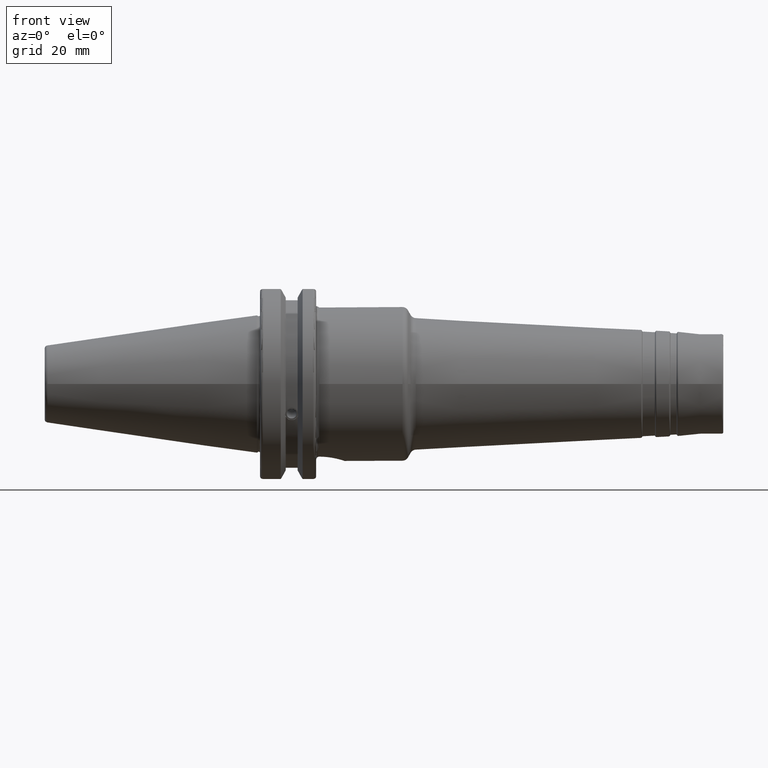
[diagram: clean part render]
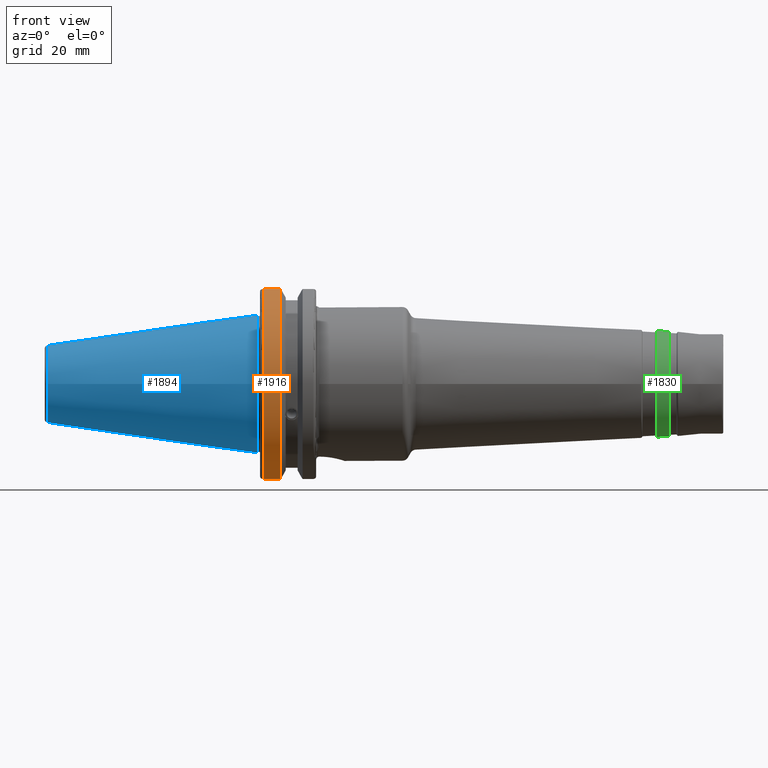
[diagram: same view with three faces highlighted in distinct colors, each labeled with its STEP entity id]
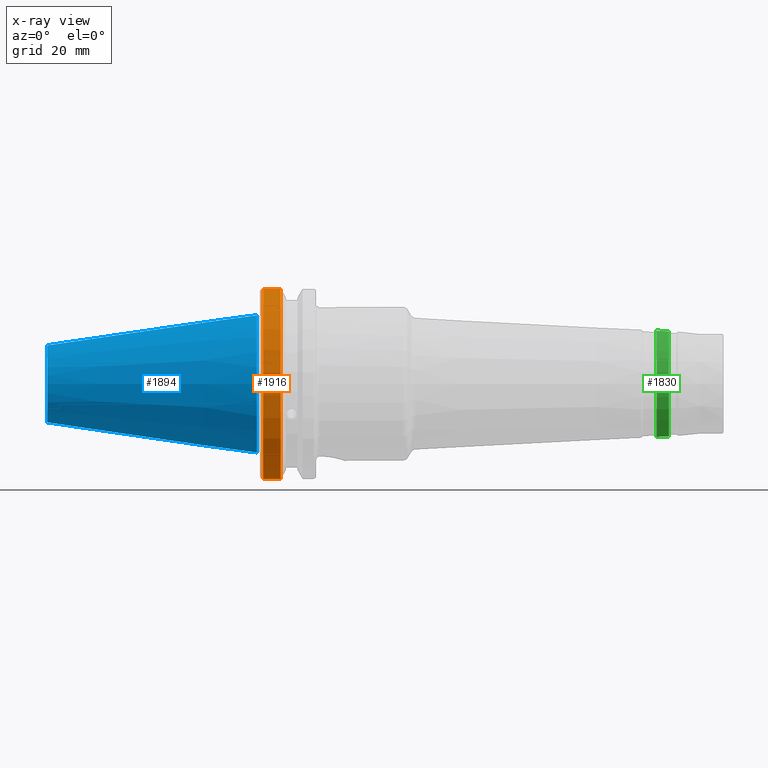
[diagram: x-ray of the same camera — body ghosted, the three highlighted faces saturated]
A machine part, front view with three faces highlighted in distinct colors.
The next image is the same camera in x-ray (body ghosted, the three faces saturated) — at least one of them is partly hidden behind the body in this view.
Their STEP definitions:

[orange] entity #1916 — the highlighted cylindrical surface (partial cylindrical patch) has radius 31.75 mm, axis along (1, 0, 0).
#78=CYLINDRICAL_SURFACE('',#2185,31.75);
#242=LINE('',#3634,#335);
#247=LINE('',#3691,#340);
#335=VECTOR('',#2656,10.);
#340=VECTOR('',#2691,10.);
#475=FACE_OUTER_BOUND('',#595,.T.);
#595=EDGE_LOOP('',(#1769,#1770,#1771,#1772));
#701=CIRCLE('',#2131,31.75);
#725=CIRCLE('',#2186,31.75);
#894=VERTEX_POINT('',#3601);
#895=VERTEX_POINT('',#3610);
#900=VERTEX_POINT('',#3633);
#909=VERTEX_POINT('',#3687);
#1154=EDGE_CURVE('',#894,#895,#701,.T.);
#1163=EDGE_CURVE('',#895,#900,#242,.T.);
#1180=EDGE_CURVE('',#909,#894,#247,.T.);
#1209=EDGE_CURVE('',#900,#909,#725,.T.);
#1769=ORIENTED_EDGE('',*,*,#1154,.F.);
#1770=ORIENTED_EDGE('',*,*,#1180,.F.);
#1771=ORIENTED_EDGE('',*,*,#1209,.F.);
#1772=ORIENTED_EDGE('',*,*,#1163,.F.);
#1916=ADVANCED_FACE('',(#475),#78,.T.);
#2131=AXIS2_PLACEMENT_3D('',#3611,#2640,#2641);
#2185=AXIS2_PLACEMENT_3D('',#3760,#2769,#2770);
#2186=AXIS2_PLACEMENT_3D('',#3761,#2771,#2772);
#2640=DIRECTION('center_axis',(-1.,0.,0.));
#2641=DIRECTION('ref_axis',(0.,-1.,1.60812264967664E-16));
#2656=DIRECTION('',(1.,0.,0.));
#2691=DIRECTION('',(-1.,0.,0.));
#2769=DIRECTION('center_axis',(1.,0.,0.));
#2770=DIRECTION('ref_axis',(0.,-1.,1.22464679914735E-16));
#2771=DIRECTION('center_axis',(1.,0.,0.));
#2772=DIRECTION('ref_axis',(0.,0.,-1.));
#3601=CARTESIAN_POINT('',(2.,-8.67204822802685,-30.5427254764662));
#3610=CARTESIAN_POINT('',(2.,-8.67204822802685,30.5427254764662));
#3611=CARTESIAN_POINT('Origin',(2.,0.,0.));
#3633=CARTESIAN_POINT('',(7.64983323092436,-8.67204822802685,30.5427254764662));
#3634=CARTESIAN_POINT('',(4.32491661546218,-8.67204822802685,30.5427254764662));
#3687=CARTESIAN_POINT('',(7.64983323092436,-8.67204822802685,-30.5427254764662));
#3691=CARTESIAN_POINT('',(4.32491661546218,-8.67204822802685,-30.5427254764662));
#3760=CARTESIAN_POINT('Origin',(4.32491661546218,0.,0.));
#3761=CARTESIAN_POINT('Origin',(7.64983323092436,0.,0.));

[blue] entity #1894 — the highlighted conical surface has half-angle 8.297 deg.
#246=LINE('',#3685,#339);
#339=VECTOR('',#2688,17.2484375);
#369=CONICAL_SURFACE('',#2149,17.2484375,0.144812498238939);
#453=FACE_OUTER_BOUND('',#571,.T.);
#571=EDGE_LOOP('',(#1658,#1659,#1660,#1661,#1662));
#706=CIRCLE('',#2143,12.3966635780937);
#707=CIRCLE('',#2144,12.3966635780937);
#711=CIRCLE('',#2150,22.225);
#904=VERTEX_POINT('',#3672);
#905=VERTEX_POINT('',#3673);
#908=VERTEX_POINT('',#3683);
#1172=EDGE_CURVE('',#904,#905,#706,.T.);
#1173=EDGE_CURVE('',#905,#904,#707,.T.);
#1177=EDGE_CURVE('',#908,#908,#711,.T.);
#1178=EDGE_CURVE('',#908,#905,#246,.T.);
#1658=ORIENTED_EDGE('',*,*,#1177,.F.);
#1659=ORIENTED_EDGE('',*,*,#1178,.T.);
#1660=ORIENTED_EDGE('',*,*,#1172,.F.);
#1661=ORIENTED_EDGE('',*,*,#1173,.F.);
#1662=ORIENTED_EDGE('',*,*,#1178,.F.);
#1894=ADVANCED_FACE('',(#453),#369,.T.);
#2143=AXIS2_PLACEMENT_3D('',#3674,#2672,#2673);
#2144=AXIS2_PLACEMENT_3D('',#3675,#2674,#2675);
#2149=AXIS2_PLACEMENT_3D('',#3682,#2684,#2685);
#2150=AXIS2_PLACEMENT_3D('',#3684,#2686,#2687);
#2672=DIRECTION('center_axis',(-1.,0.,0.));
#2673=DIRECTION('ref_axis',(0.,-1.,3.06161699786838E-17));
#2674=DIRECTION('center_axis',(-1.,0.,0.));
#2675=DIRECTION('ref_axis',(0.,-1.,3.06161699786838E-17));
#2684=DIRECTION('center_axis',(1.,0.,0.));
#2685=DIRECTION('ref_axis',(0.,1.,0.));
#2686=DIRECTION('center_axis',(1.,0.,0.));
#2687=DIRECTION('ref_axis',(0.,0.,-1.));
#2688=DIRECTION('',(-0.989532981063282,0.144306893071729,1.76724974695192E-17));
#3672=CARTESIAN_POINT('',(-67.3943068930717,-1.5181534371019E-15,12.3966635780937));
#3673=CARTESIAN_POINT('',(-67.3943068930718,-12.3966635780937,-1.5181534371019E-15));
#3674=CARTESIAN_POINT('Origin',(-67.3943068930717,0.,-1.89769179637738E-15));
#3675=CARTESIAN_POINT('Origin',(-67.3943068930717,0.,-1.89769179637738E-15));
#3682=CARTESIAN_POINT('Origin',(-34.125,0.,0.));
#3683=CARTESIAN_POINT('',(0.,-22.225,-2.72177751110499E-15));
#3684=CARTESIAN_POINT('Origin',(0.,0.,0.));
#3685=CARTESIAN_POINT('',(-34.125,-17.2484375,-2.11232437746682E-15));

[green] entity #1830 — the highlighted conical surface has half-angle 3 deg.
#174=LINE('',#2883,#267);
#267=VECTOR('',#2306,17.0202570867172);
#360=CONICAL_SURFACE('',#1995,17.0202570867172,0.0523598775598298);
#389=FACE_OUTER_BOUND('',#495,.T.);
#495=EDGE_LOOP('',(#1293,#1294,#1295,#1296,#1297,#1298));
#637=CIRCLE('',#1993,16.9166117566925);
#638=CIRCLE('',#1994,16.9166117566925);
#639=CIRCLE('',#1996,17.1239024167419);
#640=CIRCLE('',#1997,17.1239024167419);
#758=VERTEX_POINT('',#2876);
#759=VERTEX_POINT('',#2878);
#760=VERTEX_POINT('',#2882);
#761=VERTEX_POINT('',#2884);
#964=EDGE_CURVE('',#758,#759,#637,.T.);
#965=EDGE_CURVE('',#759,#758,#638,.T.);
#966=EDGE_CURVE('',#759,#760,#174,.T.);
#967=EDGE_CURVE('',#761,#760,#639,.T.);
#968=EDGE_CURVE('',#760,#761,#640,.T.);
#1293=ORIENTED_EDGE('',*,*,#965,.F.);
#1294=ORIENTED_EDGE('',*,*,#966,.T.);
#1295=ORIENTED_EDGE('',*,*,#967,.F.);
#1296=ORIENTED_EDGE('',*,*,#968,.F.);
#1297=ORIENTED_EDGE('',*,*,#966,.F.);
#1298=ORIENTED_EDGE('',*,*,#964,.F.);
#1830=ADVANCED_FACE('',(#389),#360,.T.);
#1993=AXIS2_PLACEMENT_3D('',#2879,#2300,#2301);
#1994=AXIS2_PLACEMENT_3D('',#2880,#2302,#2303);
#1995=AXIS2_PLACEMENT_3D('',#2881,#2304,#2305);
#1996=AXIS2_PLACEMENT_3D('',#2885,#2307,#2308);
#1997=AXIS2_PLACEMENT_3D('',#2886,#2309,#2310);
#2300=DIRECTION('center_axis',(1.,0.,0.));
#2301=DIRECTION('ref_axis',(0.,-1.,3.06161699786838E-17));
#2302=DIRECTION('center_axis',(1.,0.,0.));
#2303=DIRECTION('ref_axis',(0.,-1.,3.06161699786838E-17));
#2304=DIRECTION('center_axis',(-1.,0.,0.));
#2305=DIRECTION('ref_axis',(0.,1.,0.));
#2306=DIRECTION('',(-0.998629534754574,-0.0523359562429437,-6.4093061293237E-18));
#2307=DIRECTION('center_axis',(-1.,0.,0.));
#2308=DIRECTION('ref_axis',(0.,-1.,3.06161699786838E-17));
#2309=DIRECTION('center_axis',(-1.,0.,0.));
#2310=DIRECTION('ref_axis',(0.,-1.,3.06161699786838E-17));
#2876=CARTESIAN_POINT('',(132.510005780972,-2.07168744402519E-15,16.9166117566925));
#2878=CARTESIAN_POINT('',(132.510005780972,-16.9166117566925,-2.07168744402519E-15));
#2879=CARTESIAN_POINT('Origin',(132.510005780972,0.,-2.58960930503149E-15));
#2880=CARTESIAN_POINT('Origin',(132.510005780972,0.,-2.58960930503149E-15));
#2881=CARTESIAN_POINT('Origin',(130.532335071726,0.,0.));
#2882=CARTESIAN_POINT('',(128.55466436248,-17.1239024167419,-2.09707322835746E-15));
#2883=CARTESIAN_POINT('',(130.532335071726,-17.0202570867172,-2.08438033619133E-15));
#2884=CARTESIAN_POINT('',(128.55466436248,-2.09707322835746E-15,17.1239024167419));
#2885=CARTESIAN_POINT('Origin',(128.55466436248,0.,-2.62134153544683E-15));
#2886=CARTESIAN_POINT('Origin',(128.55466436248,0.,-2.62134153544683E-15));